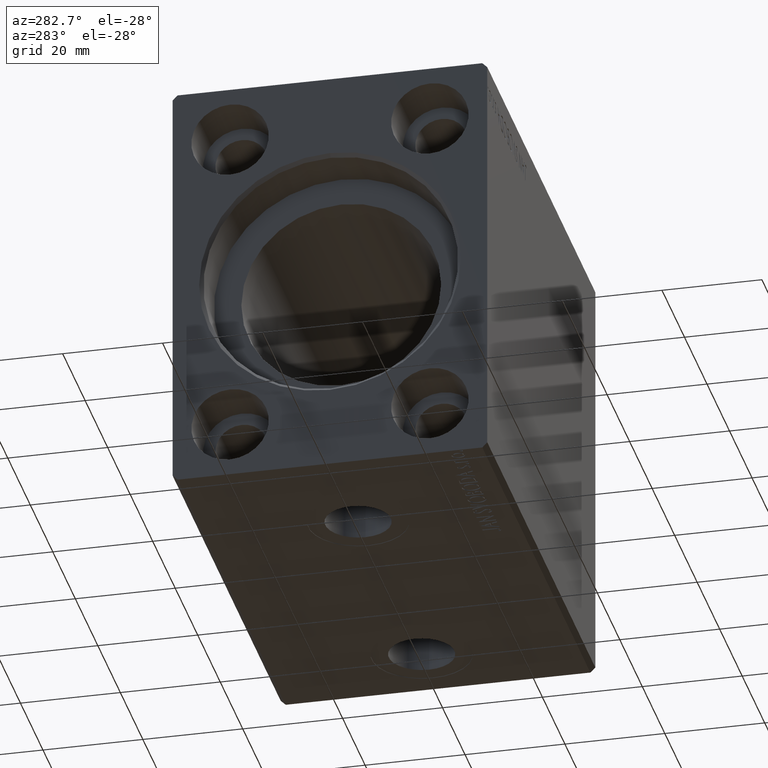
[diagram: clean part render]
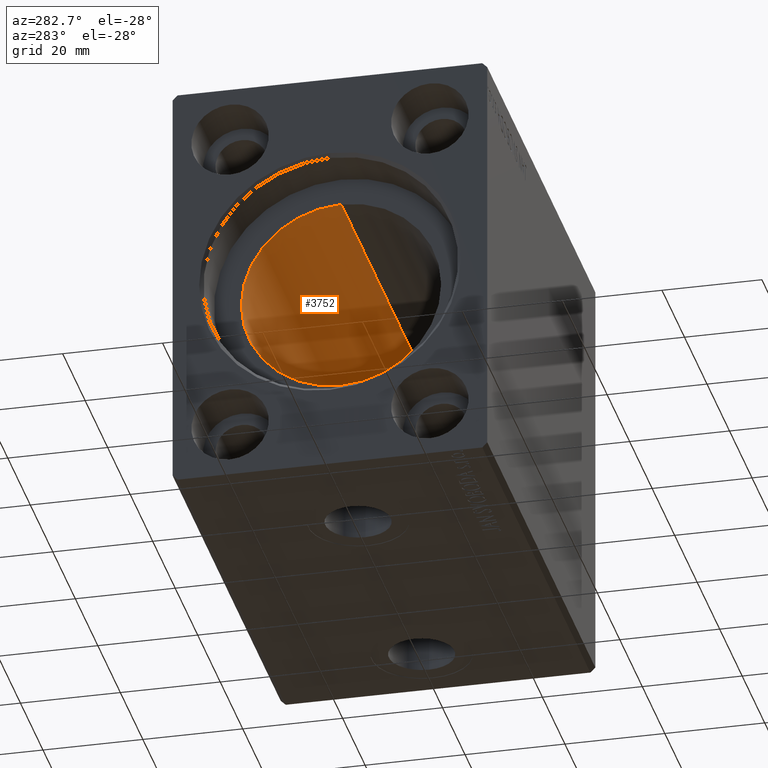
[diagram: same view with one face highlighted and labeled with its STEP entity id]
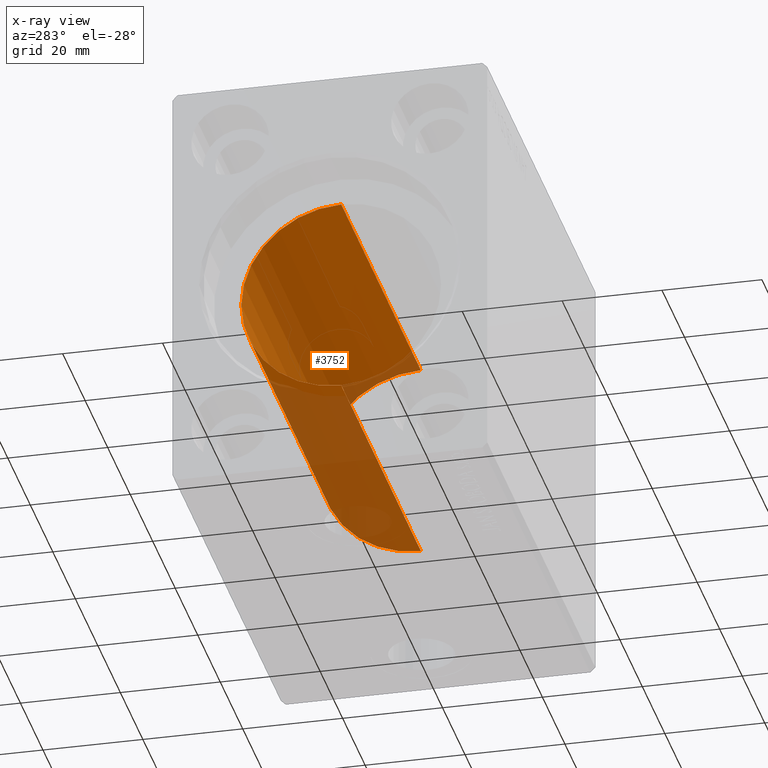
[diagram: x-ray of the same camera — body ghosted, the highlighted face saturated]
A machine part, auxiliary view. The second image highlights one B-rep face of the part: STEP entity #3752.
The next image is the same camera in x-ray: the body ghosted, the highlighted face saturated — about 35% of this face is hidden behind the body in this view.
In plain terms, the highlighted cylindrical surface (partial cylindrical patch) has radius 20 mm, axis along (-1, -0, -0).
Its self-contained STEP definition (entity closure, byte-faithful):
#1155 = AXIS2_PLACEMENT_3D ( 'NONE', #1979, #27953, #38059 ) ;
#1979 = CARTESIAN_POINT ( 'NONE',  ( 80.70000000000000284, 0.000000000000000000, 0.000000000000000000 ) ) ;
#2427 = CIRCLE ( 'NONE', #41533, 20.00000000000000000 ) ;
#2516 = DIRECTION ( 'NONE',  ( -1.000000000000000000, -0.000000000000000000, -0.000000000000000000 ) ) ;
#3752 = ADVANCED_FACE ( 'NONE', ( #5196 ), #18299, .F. ) ;
#5196 = FACE_OUTER_BOUND ( 'NONE', #26499, .T. ) ;
#6362 = EDGE_CURVE ( 'NONE', #29516, #28221, #39301, .T. ) ;
#9727 = EDGE_CURVE ( 'NONE', #17608, #33935, #38190, .T. ) ;
#10159 = ORIENTED_EDGE ( 'NONE', *, *, #22511, .F. ) ;
#16036 = CARTESIAN_POINT ( 'NONE',  ( 80.70000000000000284, 2.449293598294706513E-15, -20.00000000000000000 ) ) ;
#17608 = VERTEX_POINT ( 'NONE', #36235 ) ;
#17786 = CARTESIAN_POINT ( 'NONE',  ( 9.999999999999994671, 2.449293598294706513E-15, -20.00000000000000000 ) ) ;
#18299 = CYLINDRICAL_SURFACE ( 'NONE', #1155, 20.00000000000000000 ) ;
#18438 = ORIENTED_EDGE ( 'NONE', *, *, #6362, .T. ) ;
#19763 = DIRECTION ( 'NONE',  ( 0.000000000000000000, 0.000000000000000000, 1.000000000000000000 ) ) ;
#21168 = VECTOR ( 'NONE', #2516, 1000.000000000000000 ) ;
#22511 = EDGE_CURVE ( 'NONE', #29516, #17608, #35797, .T. ) ;
#23168 = DIRECTION ( 'NONE',  ( -1.000000000000000000, -0.000000000000000000, -0.000000000000000000 ) ) ;
#24415 = CARTESIAN_POINT ( 'NONE',  ( 9.999999999999994671, 0.000000000000000000, 0.000000000000000000 ) ) ;
#25219 = VECTOR ( 'NONE', #23168, 1000.000000000000000 ) ;
#26499 = EDGE_LOOP ( 'NONE', ( #37960, #10159, #18438, #40914 ) ) ;
#26821 = CARTESIAN_POINT ( 'NONE',  ( 80.70000000000000284, 0.000000000000000000, 0.000000000000000000 ) ) ;
#26873 = AXIS2_PLACEMENT_3D ( 'NONE', #26821, #39939, #19763 ) ;
#27953 = DIRECTION ( 'NONE',  ( -1.000000000000000000, -0.000000000000000000, -0.000000000000000000 ) ) ;
#28221 = VERTEX_POINT ( 'NONE', #29722 ) ;
#29516 = VERTEX_POINT ( 'NONE', #37026 ) ;
#29608 = CARTESIAN_POINT ( 'NONE',  ( 80.70000000000000284, 0.000000000000000000, 20.00000000000000000 ) ) ;
#29722 = CARTESIAN_POINT ( 'NONE',  ( 9.999999999999994671, 0.000000000000000000, 20.00000000000000000 ) ) ;
#30862 = DIRECTION ( 'NONE',  ( -1.000000000000000000, 0.000000000000000000, 0.000000000000000000 ) ) ;
#33935 = VERTEX_POINT ( 'NONE', #17786 ) ;
#35797 = CIRCLE ( 'NONE', #26873, 20.00000000000000000 ) ;
#36235 = CARTESIAN_POINT ( 'NONE',  ( 80.70000000000000284, 2.449293598294706513E-15, -20.00000000000000000 ) ) ;
#37026 = CARTESIAN_POINT ( 'NONE',  ( 80.70000000000000284, 0.000000000000000000, 20.00000000000000000 ) ) ;
#37960 = ORIENTED_EDGE ( 'NONE', *, *, #9727, .F. ) ;
#38059 = DIRECTION ( 'NONE',  ( 0.000000000000000000, 0.000000000000000000, 1.000000000000000000 ) ) ;
#38190 = LINE ( 'NONE', #16036, #21168 ) ;
#38675 = EDGE_CURVE ( 'NONE', #28221, #33935, #2427, .T. ) ;
#39301 = LINE ( 'NONE', #29608, #25219 ) ;
#39939 = DIRECTION ( 'NONE',  ( -1.000000000000000000, 0.000000000000000000, 0.000000000000000000 ) ) ;
#40755 = DIRECTION ( 'NONE',  ( 0.000000000000000000, 0.000000000000000000, 1.000000000000000000 ) ) ;
#40914 = ORIENTED_EDGE ( 'NONE', *, *, #38675, .T. ) ;
#41533 = AXIS2_PLACEMENT_3D ( 'NONE', #24415, #30862, #40755 ) ;